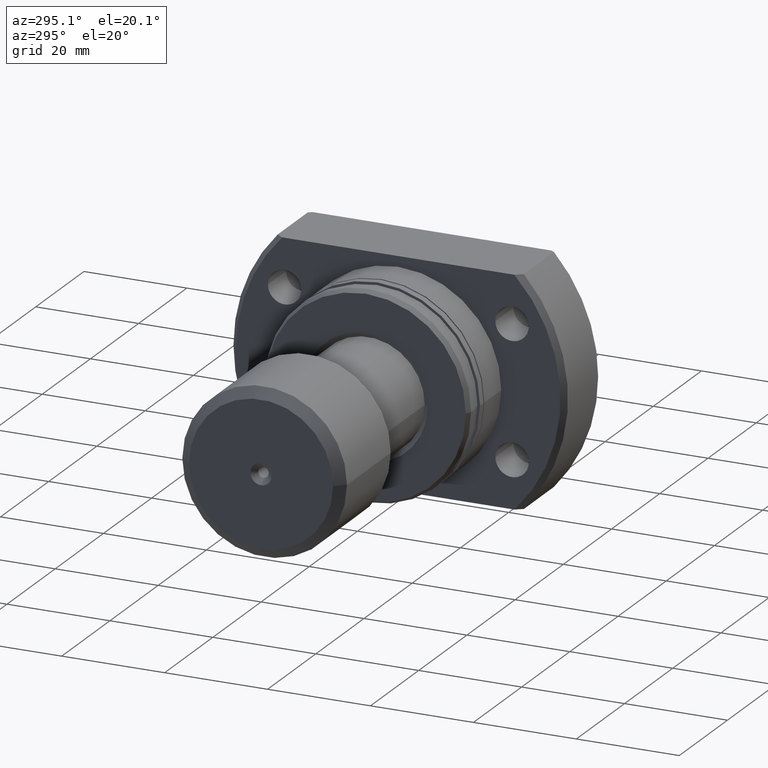
[diagram: clean part render]
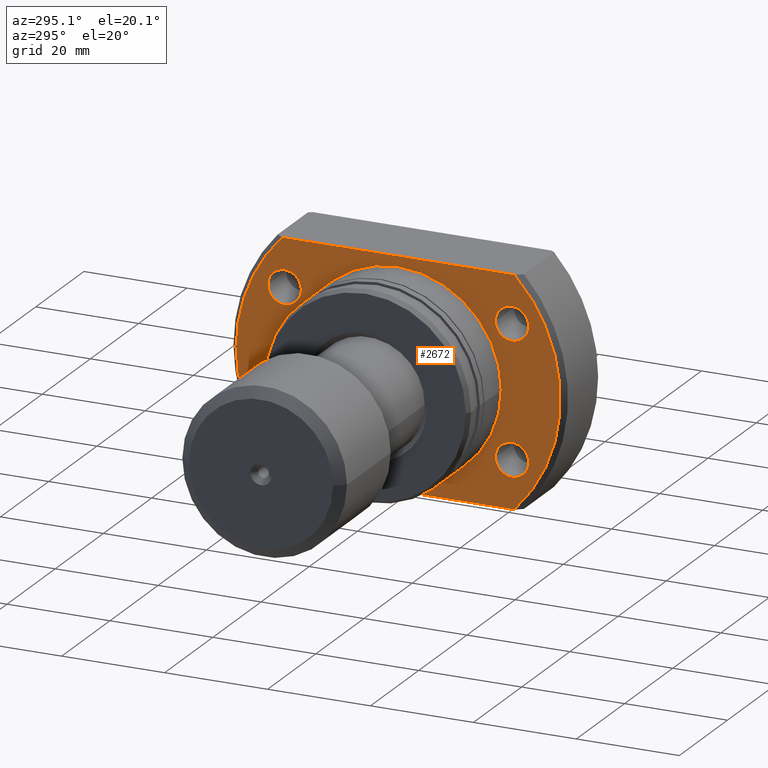
[diagram: same view with one face highlighted and labeled with its STEP entity id]
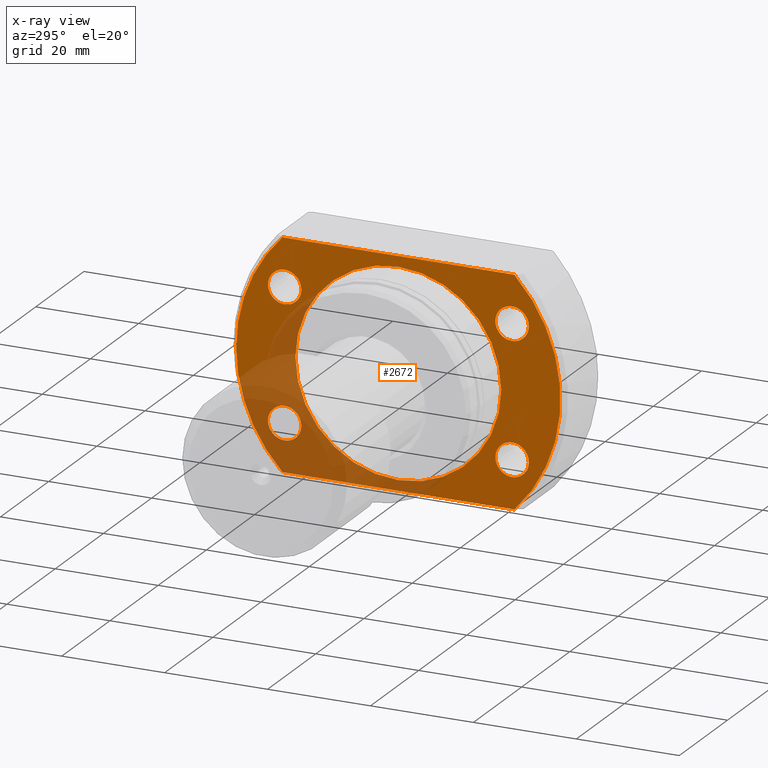
[diagram: x-ray of the same camera — body ghosted, the highlighted face saturated]
A machine part, auxiliary view. The second image highlights one B-rep face of the part: STEP entity #2672.
The next image is the same camera in x-ray: the body ghosted, the highlighted face saturated — about 28% of this face is hidden behind the body in this view.
In plain terms, the highlighted planar face has unit normal (1, 0, 0).
Its self-contained STEP definition (entity closure, byte-faithful):
#18 = FACE_BOUND ( 'NONE', #1274, .T. ) ;
#19 = AXIS2_PLACEMENT_3D ( 'NONE', #2922, #2383, #87 ) ;
#31 = AXIS2_PLACEMENT_3D ( 'NONE', #585, #1415, #3443 ) ;
#32 = EDGE_CURVE ( 'NONE', #69, #1143, #561, .T. ) ;
#59 = DIRECTION ( 'NONE',  ( 0.000000000000000000, 1.000000000000000000, 0.000000000000000000 ) ) ;
#62 = EDGE_CURVE ( 'NONE', #2629, #2360, #3476, .T. ) ;
#69 = VERTEX_POINT ( 'NONE', #773 ) ;
#87 = DIRECTION ( 'NONE',  ( 0.000000000000000000, 1.000000000000000000, 0.000000000000000000 ) ) ;
#98 = CARTESIAN_POINT ( 'NONE',  ( 13.50000000000000178, 22.09999999999961773, -12.75000000000000178 ) ) ;
#111 = EDGE_CURVE ( 'NONE', #185, #3124, #1854, .T. ) ;
#158 = CARTESIAN_POINT ( 'NONE',  ( 13.50000000000000178, -22.10000000000038511, 12.74999999999999822 ) ) ;
#185 = VERTEX_POINT ( 'NONE', #1744 ) ;
#208 = DIRECTION ( 'NONE',  ( 1.000000000000000000, 1.335978326342566810E-17, -0.000000000000000000 ) ) ;
#209 = VERTEX_POINT ( 'NONE', #889 ) ;
#229 = DIRECTION ( 'NONE',  ( 0.000000000000000000, 1.000000000000000000, 0.000000000000000000 ) ) ;
#239 = DIRECTION ( 'NONE',  ( 1.000000000000000000, 1.335978326342566810E-17, -0.000000000000000000 ) ) ;
#254 = LINE ( 'NONE', #1074, #3190 ) ;
#304 = DIRECTION ( 'NONE',  ( 0.000000000000000000, 1.000000000000000000, 0.000000000000000000 ) ) ;
#332 = EDGE_CURVE ( 'NONE', #784, #822, #1477, .T. ) ;
#333 = ORIENTED_EDGE ( 'NONE', *, *, #332, .T. ) ;
#340 = EDGE_CURVE ( 'NONE', #2360, #2629, #1213, .T. ) ;
#400 = CARTESIAN_POINT ( 'NONE',  ( 13.50000000000000178, 25.34999999999961418, -12.75000000000000178 ) ) ;
#426 = EDGE_CURVE ( 'NONE', #3231, #3070, #564, .T. ) ;
#434 = DIRECTION ( 'NONE',  ( 1.000000000000000000, 1.335978326342566810E-17, -0.000000000000000000 ) ) ;
#455 = EDGE_LOOP ( 'NONE', ( #2605, #2831, #2658, #333, #2458 ) ) ;
#561 = CIRCLE ( 'NONE', #1028, 3.249999999999999556 ) ;
#564 = CIRCLE ( 'NONE', #2647, 31.49999999999993250 ) ;
#585 = CARTESIAN_POINT ( 'NONE',  ( 13.50000000000000178, 22.09999999999961773, 12.74999999999999822 ) ) ;
#605 = CARTESIAN_POINT ( 'NONE',  ( 13.50000000000001421, -22.54440063519093940, 22.00000000000000355 ) ) ;
#636 = CARTESIAN_POINT ( 'NONE',  ( 13.50000000000000178, 22.54440063519089676, -22.00000000000000355 ) ) ;
#773 = CARTESIAN_POINT ( 'NONE',  ( 13.50000000000000178, -18.85000000000038867, 12.74999999999999822 ) ) ;
#781 = EDGE_CURVE ( 'NONE', #1143, #69, #3579, .T. ) ;
#784 = VERTEX_POINT ( 'NONE', #636 ) ;
#798 = CIRCLE ( 'NONE', #31, 3.249999999999999556 ) ;
#822 = VERTEX_POINT ( 'NONE', #1957 ) ;
#824 = CARTESIAN_POINT ( 'NONE',  ( 13.50000000000000178, -25.35000000000038511, 12.74999999999999822 ) ) ;
#841 = FACE_BOUND ( 'NONE', #3520, .T. ) ;
#867 = ORIENTED_EDGE ( 'NONE', *, *, #781, .T. ) ;
#880 = DIRECTION ( 'NONE',  ( 1.000000000000000000, 1.335978326342566810E-17, -0.000000000000000000 ) ) ;
#889 = CARTESIAN_POINT ( 'NONE',  ( 13.50000000000000355, 19.99999999999999645, 0.000000000000000000 ) ) ;
#918 = VECTOR ( 'NONE', #2859, 1000.000000000000000 ) ;
#991 = ORIENTED_EDGE ( 'NONE', *, *, #111, .T. ) ;
#1028 = AXIS2_PLACEMENT_3D ( 'NONE', #158, #1557, #1260 ) ;
#1074 = CARTESIAN_POINT ( 'NONE',  ( 13.50000000000000178, -19.99999999999999645, 22.00000000000000355 ) ) ;
#1133 = FACE_BOUND ( 'NONE', #1247, .T. ) ;
#1142 = ORIENTED_EDGE ( 'NONE', *, *, #340, .T. ) ;
#1143 = VERTEX_POINT ( 'NONE', #824 ) ;
#1206 = DIRECTION ( 'NONE',  ( 0.000000000000000000, 1.000000000000000000, 0.000000000000000000 ) ) ;
#1213 = CIRCLE ( 'NONE', #2097, 3.249999999999999556 ) ;
#1247 = EDGE_LOOP ( 'NONE', ( #1672, #2240 ) ) ;
#1260 = DIRECTION ( 'NONE',  ( 0.000000000000000000, 1.000000000000000000, 0.000000000000000000 ) ) ;
#1264 = CARTESIAN_POINT ( 'NONE',  ( 13.50000000000000178, 22.54440063519089676, 22.00000000000000355 ) ) ;
#1274 = EDGE_LOOP ( 'NONE', ( #2883, #867 ) ) ;
#1349 = CIRCLE ( 'NONE', #1867, 31.49999999999993250 ) ;
#1355 = EDGE_CURVE ( 'NONE', #209, #3264, #3475, .T. ) ;
#1385 = CARTESIAN_POINT ( 'NONE',  ( 13.50000000000000355, 1.803570740562465471E-16, 0.000000000000000000 ) ) ;
#1400 = DIRECTION ( 'NONE',  ( 1.335978326342566810E-17, -1.000000000000000000, 0.000000000000000000 ) ) ;
#1415 = DIRECTION ( 'NONE',  ( 1.000000000000000000, 1.335978326342566810E-17, -0.000000000000000000 ) ) ;
#1419 = CIRCLE ( 'NONE', #2169, 31.49999999999993250 ) ;
#1426 = CARTESIAN_POINT ( 'NONE',  ( 13.50000000000000178, -22.10000000000038511, -12.75000000000000178 ) ) ;
#1477 = LINE ( 'NONE', #3409, #918 ) ;
#1557 = DIRECTION ( 'NONE',  ( 1.000000000000000000, 1.335978326342566810E-17, -0.000000000000000000 ) ) ;
#1561 = DIRECTION ( 'NONE',  ( 1.000000000000000000, 1.335978326342566810E-17, -0.000000000000000000 ) ) ;
#1617 = PLANE ( 'NONE',  #3237 ) ;
#1672 = ORIENTED_EDGE ( 'NONE', *, *, #1355, .T. ) ;
#1720 = CARTESIAN_POINT ( 'NONE',  ( 13.50000000000000178, 18.84999999999961773, -12.75000000000000178 ) ) ;
#1744 = CARTESIAN_POINT ( 'NONE',  ( 13.50000000000000178, 18.84999999999961773, 12.74999999999999822 ) ) ;
#1746 = EDGE_CURVE ( 'NONE', #3264, #209, #3421, .T. ) ;
#1802 = DIRECTION ( 'NONE',  ( 1.000000000000000000, 1.335978326342566810E-17, -0.000000000000000000 ) ) ;
#1804 = AXIS2_PLACEMENT_3D ( 'NONE', #1385, #239, #3348 ) ;
#1812 = CARTESIAN_POINT ( 'NONE',  ( 13.50000000000000178, 1.803570740562465225E-16, 0.000000000000000000 ) ) ;
#1854 = CIRCLE ( 'NONE', #2469, 3.249999999999999556 ) ;
#1867 = AXIS2_PLACEMENT_3D ( 'NONE', #3438, #2626, #59 ) ;
#1871 = CARTESIAN_POINT ( 'NONE',  ( 13.50000000000000178, -18.85000000000038867, -12.75000000000000178 ) ) ;
#1888 = CARTESIAN_POINT ( 'NONE',  ( 13.50000000000000178, 31.49999999999993250, 0.000000000000000000 ) ) ;
#1916 = EDGE_CURVE ( 'NONE', #3070, #2840, #254, .T. ) ;
#1926 = CARTESIAN_POINT ( 'NONE',  ( 13.50000000000000355, -19.99999999999999645, 2.449293598294706119E-15 ) ) ;
#1957 = CARTESIAN_POINT ( 'NONE',  ( 13.50000000000001421, -22.54440063519093940, -22.00000000000000355 ) ) ;
#1961 = DIRECTION ( 'NONE',  ( 1.000000000000000000, 1.335978326342566810E-17, -0.000000000000000000 ) ) ;
#1999 = VERTEX_POINT ( 'NONE', #1720 ) ;
#2092 = DIRECTION ( 'NONE',  ( 0.000000000000000000, 1.000000000000000000, 0.000000000000000000 ) ) ;
#2097 = AXIS2_PLACEMENT_3D ( 'NONE', #1426, #2285, #304 ) ;
#2128 = CARTESIAN_POINT ( 'NONE',  ( 13.50000000000000178, 22.09999999999961773, -12.75000000000000178 ) ) ;
#2169 = AXIS2_PLACEMENT_3D ( 'NONE', #1812, #434, #2707 ) ;
#2240 = ORIENTED_EDGE ( 'NONE', *, *, #1746, .T. ) ;
#2285 = DIRECTION ( 'NONE',  ( 1.000000000000000000, 1.335978326342566810E-17, -0.000000000000000000 ) ) ;
#2290 = CIRCLE ( 'NONE', #3363, 3.249999999999999556 ) ;
#2340 = AXIS2_PLACEMENT_3D ( 'NONE', #2872, #1961, #3112 ) ;
#2360 = VERTEX_POINT ( 'NONE', #1871 ) ;
#2383 = DIRECTION ( 'NONE',  ( 1.000000000000000000, 1.335978326342566810E-17, -0.000000000000000000 ) ) ;
#2400 = ORIENTED_EDGE ( 'NONE', *, *, #2895, .T. ) ;
#2456 = DIRECTION ( 'NONE',  ( 1.000000000000000000, 1.335978326342566810E-17, -0.000000000000000000 ) ) ;
#2458 = ORIENTED_EDGE ( 'NONE', *, *, #2800, .F. ) ;
#2469 = AXIS2_PLACEMENT_3D ( 'NONE', #3302, #208, #3032 ) ;
#2564 = EDGE_LOOP ( 'NONE', ( #3361, #2400 ) ) ;
#2567 = CARTESIAN_POINT ( 'NONE',  ( 13.50000000000000178, -25.35000000000038511, -12.75000000000000178 ) ) ;
#2592 = AXIS2_PLACEMENT_3D ( 'NONE', #3635, #2456, #229 ) ;
#2605 = ORIENTED_EDGE ( 'NONE', *, *, #1916, .F. ) ;
#2618 = ORIENTED_EDGE ( 'NONE', *, *, #2703, .T. ) ;
#2626 = DIRECTION ( 'NONE',  ( 1.000000000000000000, 1.335978326342566810E-17, -0.000000000000000000 ) ) ;
#2629 = VERTEX_POINT ( 'NONE', #2567 ) ;
#2647 = AXIS2_PLACEMENT_3D ( 'NONE', #3433, #880, #1206 ) ;
#2658 = ORIENTED_EDGE ( 'NONE', *, *, #3484, .F. ) ;
#2672 = ADVANCED_FACE ( 'NONE', ( #841, #18, #3272, #3410, #1133, #3141 ), #1617, .F. ) ;
#2703 = EDGE_CURVE ( 'NONE', #3124, #185, #798, .T. ) ;
#2707 = DIRECTION ( 'NONE',  ( 0.000000000000000000, 1.000000000000000000, 0.000000000000000000 ) ) ;
#2780 = DIRECTION ( 'NONE',  ( -1.335978326342566810E-17, 1.000000000000000000, 0.000000000000000000 ) ) ;
#2793 = ORIENTED_EDGE ( 'NONE', *, *, #62, .T. ) ;
#2800 = EDGE_CURVE ( 'NONE', #2840, #822, #1349, .T. ) ;
#2814 = DIRECTION ( 'NONE',  ( 1.000000000000000000, 1.335978326342566810E-17, -0.000000000000000000 ) ) ;
#2831 = ORIENTED_EDGE ( 'NONE', *, *, #426, .F. ) ;
#2840 = VERTEX_POINT ( 'NONE', #605 ) ;
#2859 = DIRECTION ( 'NONE',  ( 1.335978326342566810E-17, -1.000000000000000000, 0.000000000000000000 ) ) ;
#2872 = CARTESIAN_POINT ( 'NONE',  ( 13.50000000000000178, -22.10000000000038511, 12.74999999999999822 ) ) ;
#2883 = ORIENTED_EDGE ( 'NONE', *, *, #32, .T. ) ;
#2895 = EDGE_CURVE ( 'NONE', #1999, #2903, #3301, .T. ) ;
#2903 = VERTEX_POINT ( 'NONE', #400 ) ;
#2922 = CARTESIAN_POINT ( 'NONE',  ( 13.50000000000000355, 1.803570740562465471E-16, 0.000000000000000000 ) ) ;
#2928 = CARTESIAN_POINT ( 'NONE',  ( 13.50000000000000178, 25.34999999999961418, 12.74999999999999822 ) ) ;
#2950 = DIRECTION ( 'NONE',  ( 0.000000000000000000, 1.000000000000000000, 0.000000000000000000 ) ) ;
#3032 = DIRECTION ( 'NONE',  ( 0.000000000000000000, 1.000000000000000000, 0.000000000000000000 ) ) ;
#3046 = EDGE_CURVE ( 'NONE', #2903, #1999, #2290, .T. ) ;
#3070 = VERTEX_POINT ( 'NONE', #1264 ) ;
#3082 = CARTESIAN_POINT ( 'NONE',  ( 13.50000000000000178, -19.99999999999999645, 0.000000000000000000 ) ) ;
#3112 = DIRECTION ( 'NONE',  ( 0.000000000000000000, 1.000000000000000000, 0.000000000000000000 ) ) ;
#3124 = VERTEX_POINT ( 'NONE', #2928 ) ;
#3141 = FACE_OUTER_BOUND ( 'NONE', #455, .T. ) ;
#3190 = VECTOR ( 'NONE', #1400, 1000.000000000000000 ) ;
#3231 = VERTEX_POINT ( 'NONE', #1888 ) ;
#3237 = AXIS2_PLACEMENT_3D ( 'NONE', #3082, #2814, #2780 ) ;
#3247 = EDGE_LOOP ( 'NONE', ( #1142, #2793 ) ) ;
#3264 = VERTEX_POINT ( 'NONE', #1926 ) ;
#3272 = FACE_BOUND ( 'NONE', #3247, .T. ) ;
#3301 = CIRCLE ( 'NONE', #3432, 3.249999999999999556 ) ;
#3302 = CARTESIAN_POINT ( 'NONE',  ( 13.50000000000000178, 22.09999999999961773, 12.74999999999999822 ) ) ;
#3348 = DIRECTION ( 'NONE',  ( 0.000000000000000000, 1.000000000000000000, 0.000000000000000000 ) ) ;
#3361 = ORIENTED_EDGE ( 'NONE', *, *, #3046, .T. ) ;
#3363 = AXIS2_PLACEMENT_3D ( 'NONE', #2128, #1561, #2092 ) ;
#3409 = CARTESIAN_POINT ( 'NONE',  ( 13.50000000000000178, -19.99999999999999645, -22.00000000000000355 ) ) ;
#3410 = FACE_BOUND ( 'NONE', #2564, .T. ) ;
#3421 = CIRCLE ( 'NONE', #1804, 19.99999999999999645 ) ;
#3432 = AXIS2_PLACEMENT_3D ( 'NONE', #98, #1802, #2950 ) ;
#3433 = CARTESIAN_POINT ( 'NONE',  ( 13.50000000000000178, 1.803570740562465225E-16, 0.000000000000000000 ) ) ;
#3438 = CARTESIAN_POINT ( 'NONE',  ( 13.50000000000000178, 1.803570740562465225E-16, 0.000000000000000000 ) ) ;
#3443 = DIRECTION ( 'NONE',  ( 0.000000000000000000, 1.000000000000000000, 0.000000000000000000 ) ) ;
#3475 = CIRCLE ( 'NONE', #19, 19.99999999999999645 ) ;
#3476 = CIRCLE ( 'NONE', #2592, 3.249999999999999556 ) ;
#3484 = EDGE_CURVE ( 'NONE', #784, #3231, #1419, .T. ) ;
#3520 = EDGE_LOOP ( 'NONE', ( #2618, #991 ) ) ;
#3579 = CIRCLE ( 'NONE', #2340, 3.249999999999999556 ) ;
#3635 = CARTESIAN_POINT ( 'NONE',  ( 13.50000000000000178, -22.10000000000038511, -12.75000000000000178 ) ) ;